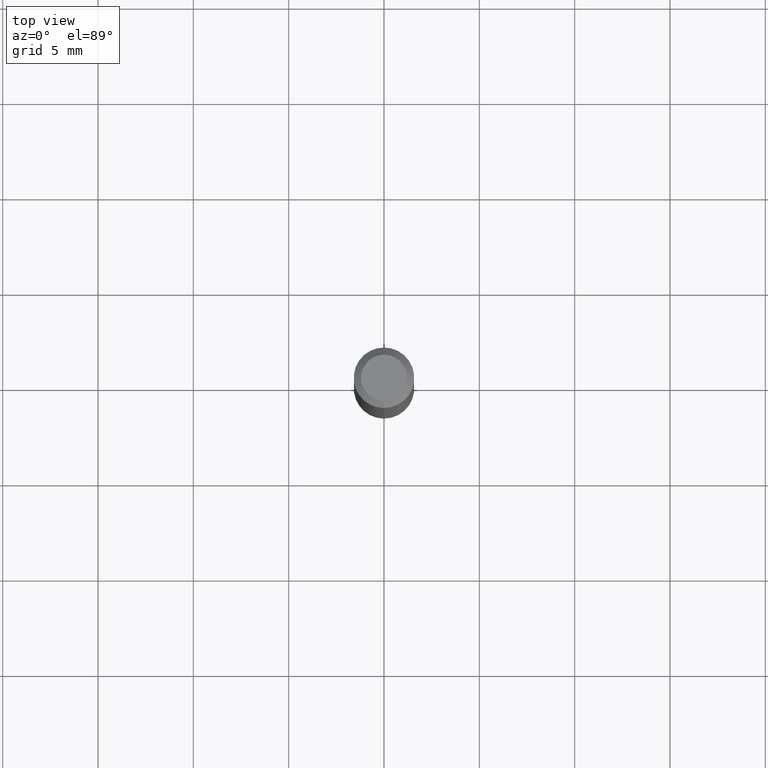
[diagram: clean part render]
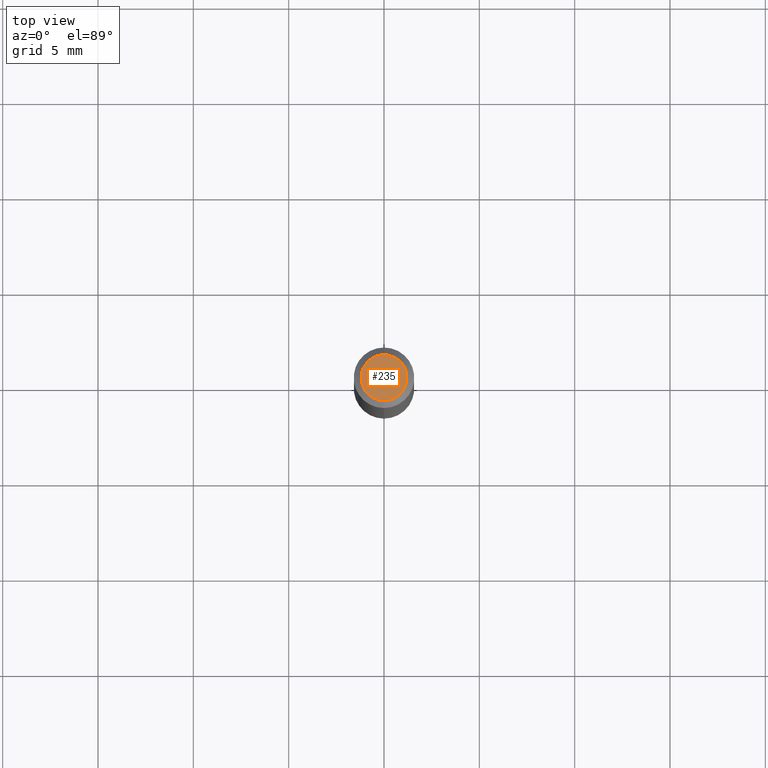
[diagram: same view with one face highlighted and labeled with its STEP entity id]
A machine part, top view. The second image highlights one B-rep face of the part: STEP entity #235.
In plain terms, the highlighted planar face has unit normal (0, -0, -1).
Its self-contained STEP definition (entity closure, byte-faithful):
#15 = DIRECTION ( 'NONE',  ( -6.982962677686266711E-15, -1.000000000000000000, 3.491502175938670362E-15 ) ) ;
#37 = EDGE_CURVE ( 'NONE', #504, #150, #381, .T. ) ;
#47 = DIRECTION ( 'NONE',  ( -2.445454255719101212E-29, 3.491502175938669574E-15, 1.000000000000000000 ) ) ;
#66 = DIRECTION ( 'NONE',  ( -6.982962677686266711E-15, -1.000000000000000000, 3.491502175938670362E-15 ) ) ;
#86 = AXIS2_PLACEMENT_3D ( 'NONE', #434, #397, #194 ) ;
#98 = EDGE_CURVE ( 'NONE', #150, #504, #315, .T. ) ;
#143 = CARTESIAN_POINT ( 'NONE',  ( 2.166508583508823253E-46, -3.093236937808313430E-32, -8.859329829793720480E-18 ) ) ;
#150 = VERTEX_POINT ( 'NONE', #371 ) ;
#194 = DIRECTION ( 'NONE',  ( 6.982962677686265922E-15, 1.000000000000000000, -3.491502175938669574E-15 ) ) ;
#208 = ORIENTED_EDGE ( 'NONE', *, *, #37, .T. ) ;
#224 = ORIENTED_EDGE ( 'NONE', *, *, #98, .T. ) ;
#235 = ADVANCED_FACE ( 'NONE', ( #236 ), #356, .F. ) ;
#236 = FACE_OUTER_BOUND ( 'NONE', #346, .T. ) ;
#248 = CARTESIAN_POINT ( 'NONE',  ( 2.166508583508823253E-46, -3.093236937808313430E-32, -8.859329829793720480E-18 ) ) ;
#300 = AXIS2_PLACEMENT_3D ( 'NONE', #143, #425, #66 ) ;
#315 = CIRCLE ( 'NONE', #300, 0.04749999999999999362 ) ;
#334 = CARTESIAN_POINT ( 'NONE',  ( -3.773273898774340269E-16, -0.04749999999999999362, 1.569870235272930603E-16 ) ) ;
#346 = EDGE_LOOP ( 'NONE', ( #224, #208 ) ) ;
#356 = PLANE ( 'NONE',  #86 ) ;
#371 = CARTESIAN_POINT ( 'NONE',  ( 3.840629472727447874E-16, 0.04749999999999999362, -1.747056831868805383E-16 ) ) ;
#381 = CIRCLE ( 'NONE', #387, 0.04749999999999999362 ) ;
#387 = AXIS2_PLACEMENT_3D ( 'NONE', #248, #47, #15 ) ;
#397 = DIRECTION ( 'NONE',  ( 2.445454255719100651E-29, -3.491502175938669574E-15, -1.000000000000000000 ) ) ;
#425 = DIRECTION ( 'NONE',  ( -2.445454255719101212E-29, 3.491502175938669574E-15, 1.000000000000000000 ) ) ;
#434 = CARTESIAN_POINT ( 'NONE',  ( 3.316907271900976096E-16, 0.04749999999999999362, -1.702760182719836503E-16 ) ) ;
#504 = VERTEX_POINT ( 'NONE', #334 ) ;